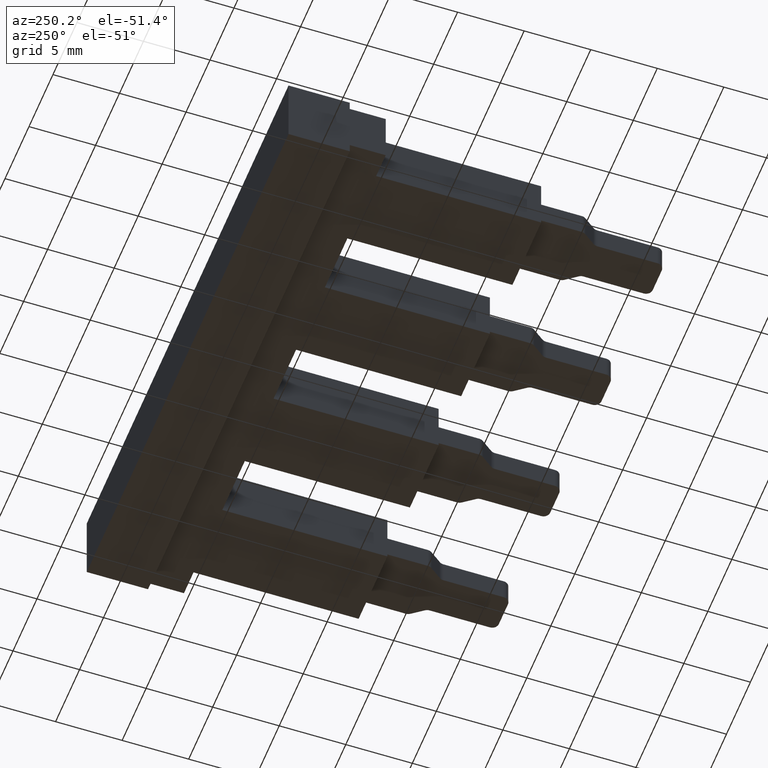
[diagram: clean part render]
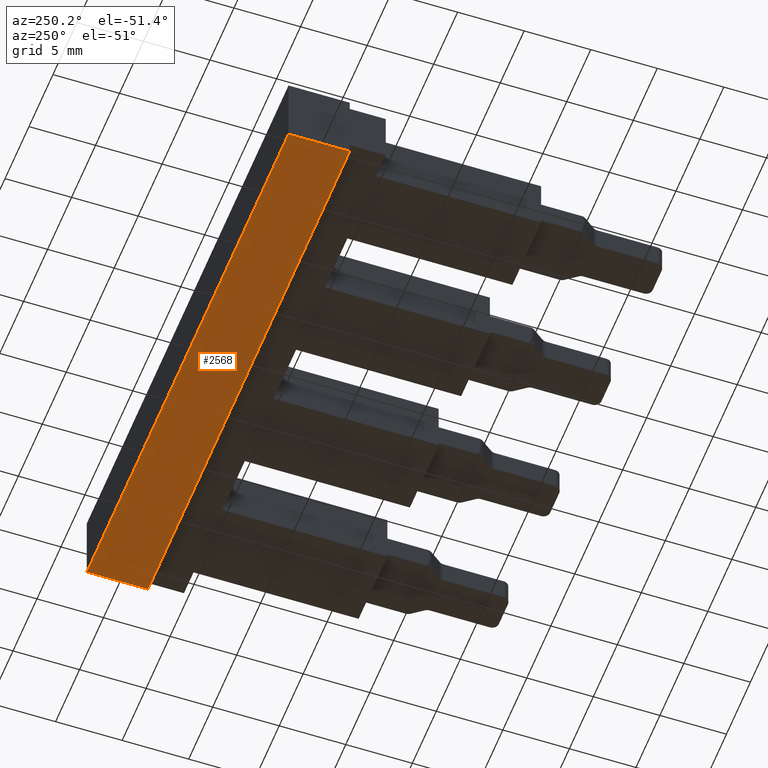
[diagram: same view with one face highlighted and labeled with its STEP entity id]
A machine part, auxiliary view. The second image highlights one B-rep face of the part: STEP entity #2568.
In plain terms, the highlighted planar face has unit normal (0, 0, -1).
Its self-contained STEP definition (entity closure, byte-faithful):
#81 = DIRECTION ( 'NONE',  ( -1.000000000000000000, 0.0000000000000000000, 0.0000000000000000000 ) ) ;
#105 = FACE_OUTER_BOUND ( 'NONE', #1468, .T. ) ;
#112 = CARTESIAN_POINT ( 'NONE',  ( -10.70000000000000300, 7.299999999999993600, -0.6999999999999999600 ) ) ;
#113 = DIRECTION ( 'NONE',  ( 0.0000000000000000000, 0.0000000000000000000, -1.000000000000000000 ) ) ;
#121 = PLANE ( 'NONE',  #2231 ) ;
#976 = CARTESIAN_POINT ( 'NONE',  ( 42.09999999999999400, 2.700000000000006800, -0.6999999999999999600 ) ) ;
#1015 = CARTESIAN_POINT ( 'NONE',  ( 0.0000000000000000000, 7.299999999999999800, -0.6999999999999999600 ) ) ;
#1041 = CARTESIAN_POINT ( 'NONE',  ( -1.108295554096292100E-016, 2.699999999999997500, -0.6999999999999999600 ) ) ;
#1044 = CARTESIAN_POINT ( 'NONE',  ( 42.09999999999999400, 7.300000000000006000, -0.6999999999999999600 ) ) ;
#1151 = LINE ( 'NONE', #1183, #2014 ) ;
#1152 = DIRECTION ( 'NONE',  ( 3.016491377670779700E-016, -1.000000000000000000, 0.0000000000000000000 ) ) ;
#1157 = DIRECTION ( 'NONE',  ( -1.000000000000000000, -2.775557561562890400E-016, 0.0000000000000000000 ) ) ;
#1163 = LINE ( 'NONE', #1180, #2000 ) ;
#1180 = CARTESIAN_POINT ( 'NONE',  ( 31.39999999999999900, 2.700000000000005100, -0.6999999999999999600 ) ) ;
#1183 = CARTESIAN_POINT ( 'NONE',  ( 42.09999999999999400, 7.300000000000006000, -0.6999999999999999600 ) ) ;
#1186 = CARTESIAN_POINT ( 'NONE',  ( -10.70000000000000300, 7.299999999999993600, -0.6999999999999999600 ) ) ;
#1190 = CARTESIAN_POINT ( 'NONE',  ( 0.0000000000000000000, 7.299999999999999800, -0.6999999999999999600 ) ) ;
#1197 = DIRECTION ( 'NONE',  ( 1.000000000000000000, 2.775557561562890400E-016, 0.0000000000000000000 ) ) ;
#1205 = DIRECTION ( 'NONE',  ( 2.409338161078894500E-017, 1.000000000000000000, 0.0000000000000000000 ) ) ;
#1215 = LINE ( 'NONE', #1190, #2028 ) ;
#1227 = LINE ( 'NONE', #1186, #2004 ) ;
#1292 = VERTEX_POINT ( 'NONE', #976 ) ;
#1319 = VERTEX_POINT ( 'NONE', #1041 ) ;
#1323 = VERTEX_POINT ( 'NONE', #1015 ) ;
#1353 = VERTEX_POINT ( 'NONE', #1044 ) ;
#1468 = EDGE_LOOP ( 'NONE', ( #1890, #1901, #1884, #1880 ) ) ;
#1880 = ORIENTED_EDGE ( 'NONE', *, *, #2386, .T. ) ;
#1884 = ORIENTED_EDGE ( 'NONE', *, *, #2373, .T. ) ;
#1890 = ORIENTED_EDGE ( 'NONE', *, *, #2379, .T. ) ;
#1901 = ORIENTED_EDGE ( 'NONE', *, *, #2370, .T. ) ;
#2000 = VECTOR ( 'NONE', #1157, 1000.000000000000000 ) ;
#2004 = VECTOR ( 'NONE', #1197, 1000.000000000000000 ) ;
#2014 = VECTOR ( 'NONE', #1152, 1000.000000000000000 ) ;
#2028 = VECTOR ( 'NONE', #1205, 1000.000000000000000 ) ;
#2231 = AXIS2_PLACEMENT_3D ( 'NONE', #112, #113, #81 ) ;
#2370 = EDGE_CURVE ( 'NONE', #1353, #1292, #1151, .T. ) ;
#2373 = EDGE_CURVE ( 'NONE', #1292, #1319, #1163, .T. ) ;
#2379 = EDGE_CURVE ( 'NONE', #1323, #1353, #1227, .T. ) ;
#2386 = EDGE_CURVE ( 'NONE', #1319, #1323, #1215, .T. ) ;
#2568 = ADVANCED_FACE ( 'NONE', ( #105 ), #121, .T. ) ;